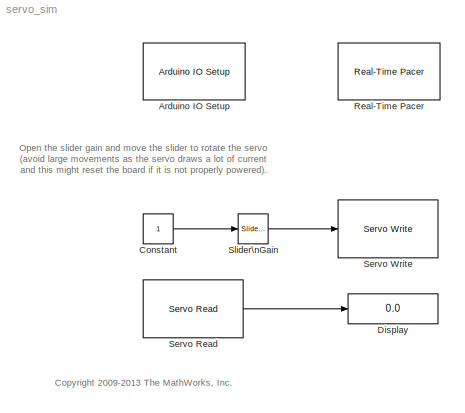
MODEL servo_sim
KIND model
BLOCK [Reference] Arduino IO Setup  REF=arduino_io_lib/Arduino IO Setup
  Ports = []
  Priority = 3
  SourceBlock = arduino_io_lib/Arduino IO Setup
  SourceType = Arduino IO Setup
  arduinoVar = Temporary arduino variable: Arduino1
  comPort = COM9
BLOCK [Constant] Constant
BLOCK [Display] Display
  Decimation = 1
  Lockdown = off
  Ports = [1]
BLOCK [Reference] Real-Time Pacer  REF=arduino_io_lib/Real-Time Pacer
  Ports = []
  SourceBlock = arduino_io_lib/Real-Time Pacer
  SourceType = RealTime_Pacer
  simTimePerRealTime = 1
BLOCK [Reference] Servo Read  REF=arduino_io_lib/Servo Read
  Ports = [0, 1]
  SourceBlock = arduino_io_lib/Servo Read
  SourceType = Arduino IO Servo Read
  T = 0.2
  arduinoVar = Temporary arduino variable: Arduino1
  pinNum = 9
BLOCK [Reference] Servo Write  REF=arduino_io_lib/Servo Write
  Ports = [1]
  SourceBlock = arduino_io_lib/Servo Write
  SourceType = Arduino IO servo Write
  T = 0.2
  arduinoVar = Temporary arduino variable: Arduino1
  pinNum = 9
BLOCK [Reference] Slider\nGain  REF=simulink/Math\nOperations/Slider\nGain
  FunctionWithSeparateData = off
  Ports = [1, 1]
  RTWMemSecDataConstants = Inherit from model
  RTWMemSecDataInternal = Inherit from model
  RTWMemSecDataParameters = Inherit from model
  RTWMemSecFuncExecute = Inherit from model
  RTWMemSecFuncInitTerm = Inherit from model
  ShowPortLabels = FromPortIcon
  SourceBlock = simulink/Math\nOperations/Slider\nGain
  SourceType = Slider Gain
  SystemSampleTime = -1
  gain = 90
  high = 170
  low = 10
ANNOTATION (root): <copyright redacted>
ANNOTATION (root): Open the slider gain and move the slider to rotate the servo\n(avoid large movements as the servo draws a lot of current\nand this might reset the board if it is not properly powered).
LINE Constant:1 -> Slider\nGain:1
LINE Servo Read:1 -> Display:1
LINE Slider\nGain:1 -> Servo Write:1
